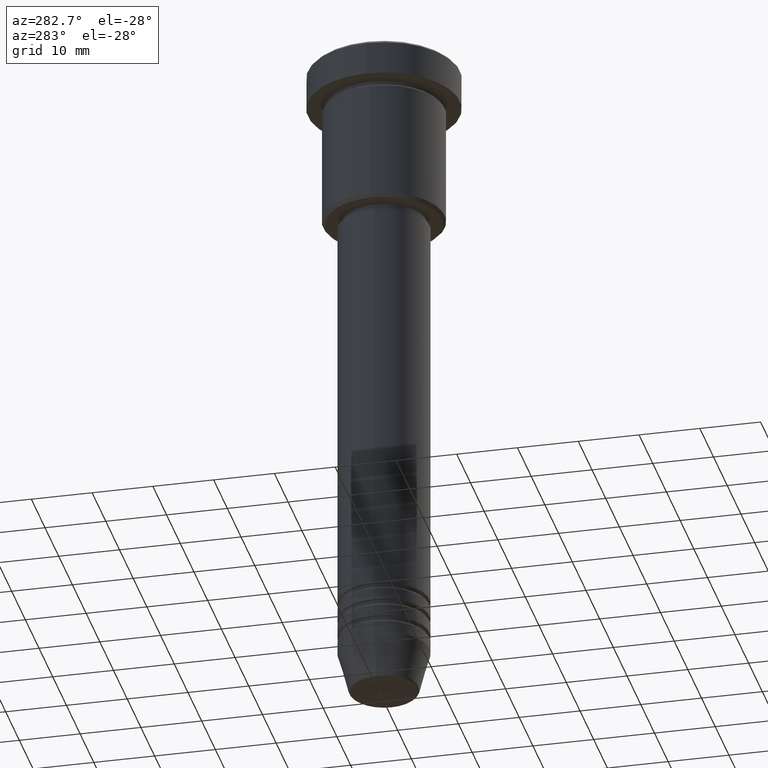
[diagram: clean part render]
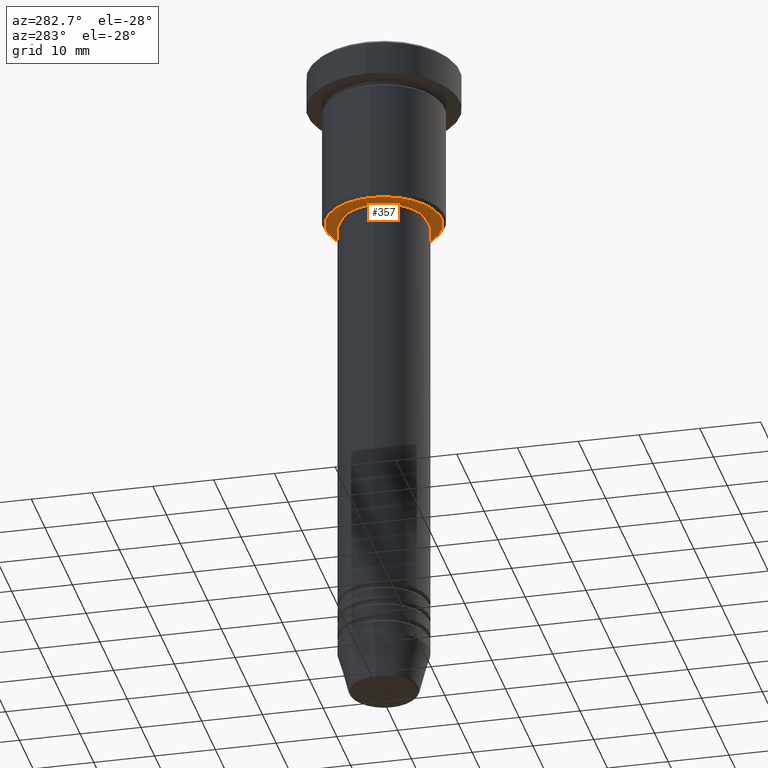
[diagram: same view with one face highlighted and labeled with its STEP entity id]
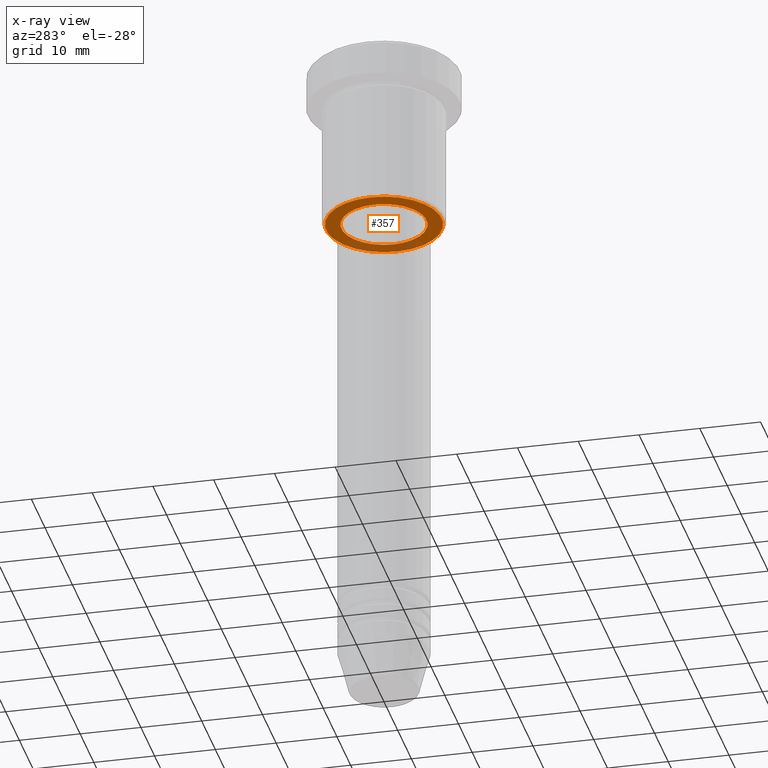
[diagram: x-ray of the same camera — body ghosted, the highlighted face saturated]
A machine part, auxiliary view. The second image highlights one B-rep face of the part: STEP entity #357.
The next image is the same camera in x-ray: the body ghosted, the highlighted face saturated — about 25% of this face is hidden behind the body in this view.
In plain terms, the highlighted planar face has unit normal (0, 0, -1).
Its self-contained STEP definition (entity closure, byte-faithful):
#16 = CARTESIAN_POINT ( 'NONE',  ( -6.999999999999999112, 8.572527594031472204E-16, -27.00000000000000000 ) ) ;
#61 = DIRECTION ( 'NONE',  ( -1.000000000000000000, 0.000000000000000000, 0.000000000000000000 ) ) ;
#80 = CARTESIAN_POINT ( 'NONE',  ( 0.000000000000000000, 0.000000000000000000, -27.00000000000000000 ) ) ;
#104 = AXIS2_PLACEMENT_3D ( 'NONE', #564, #299, #662 ) ;
#109 = CARTESIAN_POINT ( 'NONE',  ( -9.499999999999980460, 1.194030629168668286E-15, -27.00000000000000000 ) ) ;
#120 = AXIS2_PLACEMENT_3D ( 'NONE', #80, #267, #895 ) ;
#134 = DIRECTION ( 'NONE',  ( 0.000000000000000000, 0.000000000000000000, -1.000000000000000000 ) ) ;
#137 = CIRCLE ( 'NONE', #1042, 6.999999999999999112 ) ;
#200 = DIRECTION ( 'NONE',  ( 1.000000000000000000, 0.000000000000000000, 0.000000000000000000 ) ) ;
#203 = VERTEX_POINT ( 'NONE', #109 ) ;
#206 = VERTEX_POINT ( 'NONE', #467 ) ;
#220 = EDGE_LOOP ( 'NONE', ( #303, #1092 ) ) ;
#236 = DIRECTION ( 'NONE',  ( -1.000000000000000000, 0.000000000000000000, -0.000000000000000000 ) ) ;
#252 = AXIS2_PLACEMENT_3D ( 'NONE', #1065, #134, #236 ) ;
#267 = DIRECTION ( 'NONE',  ( 0.000000000000000000, 0.000000000000000000, -1.000000000000000000 ) ) ;
#279 = EDGE_CURVE ( 'NONE', #203, #604, #1040, .T. ) ;
#293 = CARTESIAN_POINT ( 'NONE',  ( 0.000000000000000000, 0.000000000000000000, -27.00000000000000000 ) ) ;
#299 = DIRECTION ( 'NONE',  ( -0.000000000000000000, -0.000000000000000000, 1.000000000000000000 ) ) ;
#303 = ORIENTED_EDGE ( 'NONE', *, *, #871, .T. ) ;
#319 = FACE_BOUND ( 'NONE', #857, .T. ) ;
#357 = ADVANCED_FACE ( 'NONE', ( #784, #319 ), #691, .T. ) ;
#378 = ORIENTED_EDGE ( 'NONE', *, *, #486, .T. ) ;
#411 = CARTESIAN_POINT ( 'NONE',  ( 9.499999999999980460, 0.000000000000000000, -27.00000000000000000 ) ) ;
#436 = AXIS2_PLACEMENT_3D ( 'NONE', #598, #699, #61 ) ;
#467 = CARTESIAN_POINT ( 'NONE',  ( 6.999999999999999112, 0.000000000000000000, -27.00000000000000000 ) ) ;
#486 = EDGE_CURVE ( 'NONE', #206, #1143, #137, .T. ) ;
#526 = EDGE_CURVE ( 'NONE', #1143, #206, #960, .T. ) ;
#564 = CARTESIAN_POINT ( 'NONE',  ( 0.000000000000000000, 0.000000000000000000, -27.00000000000000000 ) ) ;
#598 = CARTESIAN_POINT ( 'NONE',  ( 0.000000000000000000, 0.000000000000000000, -27.00000000000000000 ) ) ;
#604 = VERTEX_POINT ( 'NONE', #411 ) ;
#662 = DIRECTION ( 'NONE',  ( 1.000000000000000000, 0.000000000000000000, 0.000000000000000000 ) ) ;
#671 = CIRCLE ( 'NONE', #120, 9.499999999999980460 ) ;
#691 = PLANE ( 'NONE',  #252 ) ;
#699 = DIRECTION ( 'NONE',  ( 0.000000000000000000, 0.000000000000000000, -1.000000000000000000 ) ) ;
#741 = DIRECTION ( 'NONE',  ( -0.000000000000000000, -0.000000000000000000, 1.000000000000000000 ) ) ;
#784 = FACE_OUTER_BOUND ( 'NONE', #220, .T. ) ;
#857 = EDGE_LOOP ( 'NONE', ( #378, #933 ) ) ;
#871 = EDGE_CURVE ( 'NONE', #604, #203, #671, .T. ) ;
#895 = DIRECTION ( 'NONE',  ( -1.000000000000000000, 0.000000000000000000, 0.000000000000000000 ) ) ;
#933 = ORIENTED_EDGE ( 'NONE', *, *, #526, .T. ) ;
#960 = CIRCLE ( 'NONE', #104, 6.999999999999999112 ) ;
#1040 = CIRCLE ( 'NONE', #436, 9.499999999999980460 ) ;
#1042 = AXIS2_PLACEMENT_3D ( 'NONE', #293, #741, #200 ) ;
#1065 = CARTESIAN_POINT ( 'NONE',  ( 0.000000000000000000, 10.00000000000000000, -27.00000000000000000 ) ) ;
#1092 = ORIENTED_EDGE ( 'NONE', *, *, #279, .T. ) ;
#1143 = VERTEX_POINT ( 'NONE', #16 ) ;